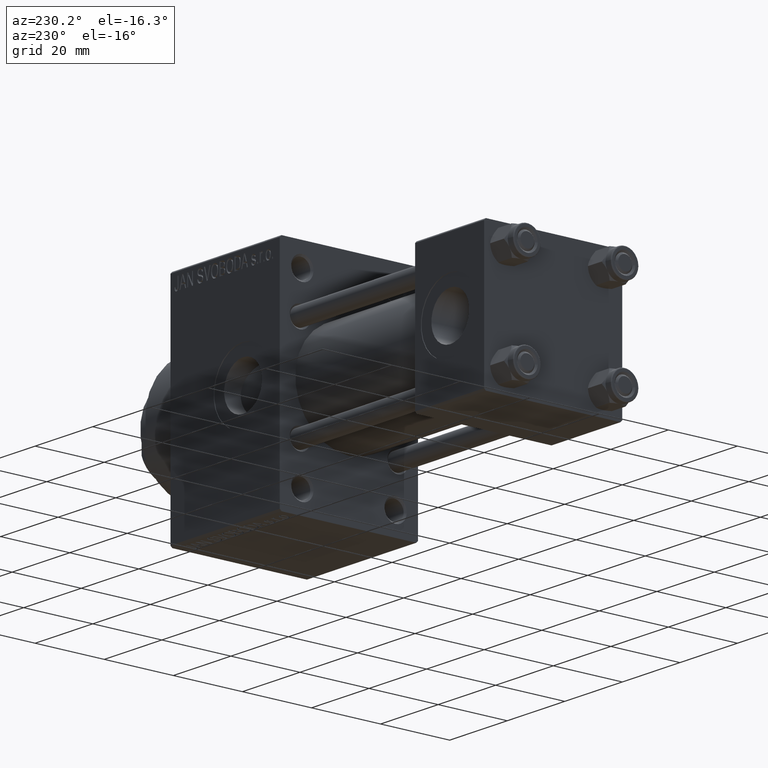
[diagram: clean part render]
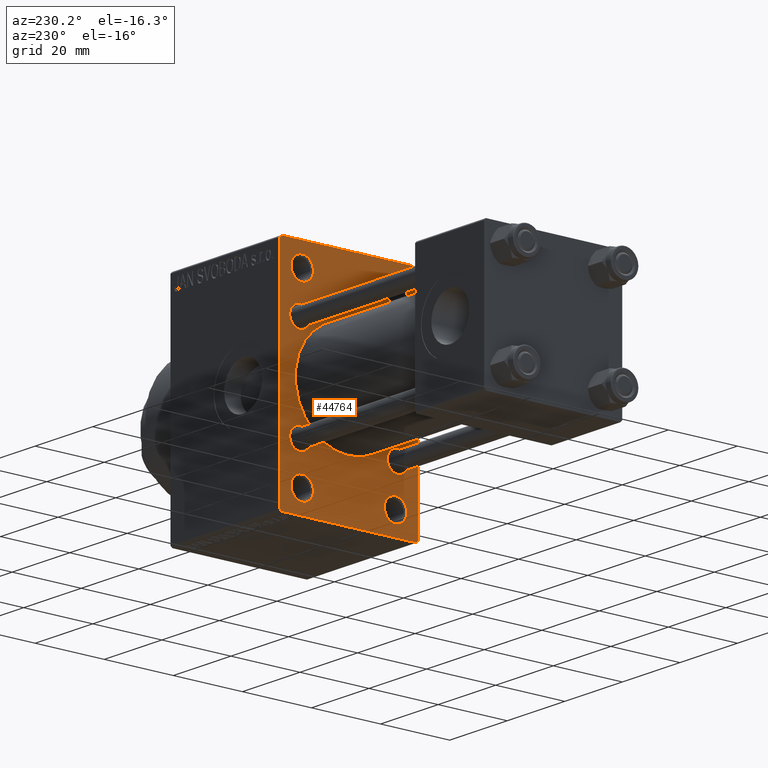
[diagram: same view with one face highlighted and labeled with its STEP entity id]
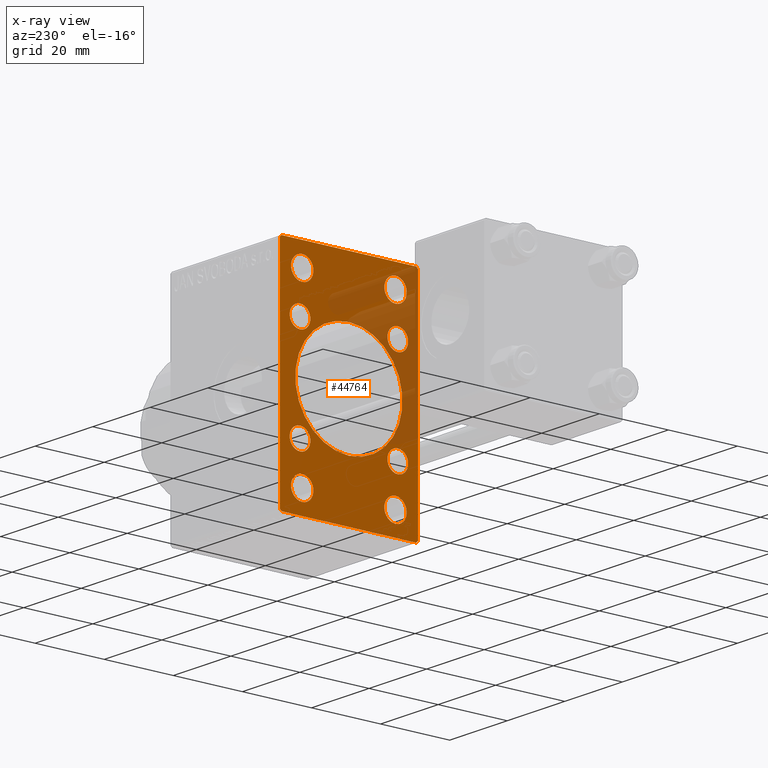
[diagram: x-ray of the same camera — body ghosted, the highlighted face saturated]
A machine part, auxiliary view. The second image highlights one B-rep face of the part: STEP entity #44764.
The next image is the same camera in x-ray: the body ghosted, the highlighted face saturated — about 24% of this face is hidden behind the body in this view.
In plain terms, the highlighted planar face has unit normal (-1, 0, 0).
Its self-contained STEP definition (entity closure, byte-faithful):
#156 = VECTOR ( 'NONE', #44345, 1000.000000000000000 ) ;
#421 = EDGE_CURVE ( 'NONE', #25995, #25108, #32801, .T. ) ;
#692 = CIRCLE ( 'NONE', #35321, 3.250000000000016875 ) ;
#704 = CARTESIAN_POINT ( 'NONE',  ( 71.00000000000001421, 25.74999999999999645, -25.74999999999999645 ) ) ;
#1115 = VERTEX_POINT ( 'NONE', #12211 ) ;
#1223 = ORIENTED_EDGE ( 'NONE', *, *, #1964, .T. ) ;
#1352 = CIRCLE ( 'NONE', #38324, 3.250000000000016875 ) ;
#1600 = DIRECTION ( 'NONE',  ( -1.000000000000000000, 0.000000000000000000, -0.000000000000000000 ) ) ;
#1762 = EDGE_CURVE ( 'NONE', #26528, #18383, #37990, .T. ) ;
#1808 = AXIS2_PLACEMENT_3D ( 'NONE', #23150, #19945, #4702 ) ;
#1849 = VERTEX_POINT ( 'NONE', #4501 ) ;
#1964 = EDGE_CURVE ( 'NONE', #24273, #14211, #19125, .T. ) ;
#2281 = CARTESIAN_POINT ( 'NONE',  ( 71.00000000000001421, 20.00000000000000000, -31.49999999999998579 ) ) ;
#2353 = ORIENTED_EDGE ( 'NONE', *, *, #30897, .T. ) ;
#2374 = DIRECTION ( 'NONE',  ( 1.000000000000000000, 0.000000000000000000, 0.000000000000000000 ) ) ;
#2577 = AXIS2_PLACEMENT_3D ( 'NONE', #8397, #41891, #27104 ) ;
#3320 = DIRECTION ( 'NONE',  ( 1.000000000000000000, 0.000000000000000000, 0.000000000000000000 ) ) ;
#3573 = AXIS2_PLACEMENT_3D ( 'NONE', #47899, #6291, #43951 ) ;
#3635 = EDGE_CURVE ( 'NONE', #33167, #43824, #45037, .T. ) ;
#4073 = FACE_BOUND ( 'NONE', #32811, .T. ) ;
#4501 = CARTESIAN_POINT ( 'NONE',  ( 71.00000000000001421, 13.49999999999999822, 22.24999999999998934 ) ) ;
#4555 = CARTESIAN_POINT ( 'NONE',  ( 71.00000000000001421, 0.000000000000000000, 0.000000000000000000 ) ) ;
#4702 = DIRECTION ( 'NONE',  ( 0.000000000000000000, 0.000000000000000000, 1.000000000000000000 ) ) ;
#5464 = EDGE_CURVE ( 'NONE', #16587, #25995, #20316, .T. ) ;
#5902 = EDGE_LOOP ( 'NONE', ( #30404, #20345 ) ) ;
#6171 = CIRCLE ( 'NONE', #40752, 3.000000000000004441 ) ;
#6291 = DIRECTION ( 'NONE',  ( 1.000000000000000000, 0.000000000000000000, 0.000000000000000000 ) ) ;
#6374 = FACE_BOUND ( 'NONE', #17236, .T. ) ;
#7287 = EDGE_CURVE ( 'NONE', #46669, #39040, #45914, .T. ) ;
#7635 = LINE ( 'NONE', #18455, #14641 ) ;
#7828 = EDGE_LOOP ( 'NONE', ( #44737, #19080 ) ) ;
#7916 = CARTESIAN_POINT ( 'NONE',  ( 71.00000000000001421, -2.602085213965210642E-15, 0.000000000000000000 ) ) ;
#7995 = CIRCLE ( 'NONE', #26863, 3.250000000000016875 ) ;
#8278 = AXIS2_PLACEMENT_3D ( 'NONE', #34376, #11956, #26981 ) ;
#8397 = CARTESIAN_POINT ( 'NONE',  ( 71.00000000000001421, -14.15000000000000036, 14.15000000000000036 ) ) ;
#8470 = EDGE_CURVE ( 'NONE', #15610, #1115, #30999, .T. ) ;
#8577 = EDGE_CURVE ( 'NONE', #39567, #31735, #22392, .T. ) ;
#8730 = FACE_BOUND ( 'NONE', #14766, .T. ) ;
#8760 = DIRECTION ( 'NONE',  ( 0.000000000000000000, 0.7071067811865474617, -0.7071067811865474617 ) ) ;
#9178 = ORIENTED_EDGE ( 'NONE', *, *, #46889, .T. ) ;
#9642 = CARTESIAN_POINT ( 'NONE',  ( 71.00000000000001421, -2.602085213965210642E-15, 0.000000000000000000 ) ) ;
#9948 = DIRECTION ( 'NONE',  ( 0.000000000000000000, 0.000000000000000000, 1.000000000000000000 ) ) ;
#9986 = ORIENTED_EDGE ( 'NONE', *, *, #13464, .T. ) ;
#10245 = ORIENTED_EDGE ( 'NONE', *, *, #41807, .T. ) ;
#10298 = EDGE_CURVE ( 'NONE', #29794, #26303, #27956, .T. ) ;
#10480 = VECTOR ( 'NONE', #8760, 1000.000000000000114 ) ;
#10670 = ORIENTED_EDGE ( 'NONE', *, *, #17440, .T. ) ;
#10693 = CARTESIAN_POINT ( 'NONE',  ( 71.00000000000001421, 13.49999999999999822, -22.24999999999998224 ) ) ;
#10714 = CARTESIAN_POINT ( 'NONE',  ( 71.00000000000001421, -13.50000000000000178, 25.50000000000000355 ) ) ;
#10760 = LINE ( 'NONE', #40806, #37508 ) ;
#10778 = CARTESIAN_POINT ( 'NONE',  ( 71.00000000000001421, 13.49999999999999822, -28.75000000000001421 ) ) ;
#10877 = CARTESIAN_POINT ( 'NONE',  ( 71.00000000000001421, 20.00000000000000000, 31.49999999999998579 ) ) ;
#10984 = DIRECTION ( 'NONE',  ( 0.000000000000000000, 0.000000000000000000, 1.000000000000000000 ) ) ;
#11805 = DIRECTION ( 'NONE',  ( 1.000000000000000000, 0.000000000000000000, 0.000000000000000000 ) ) ;
#11873 = CARTESIAN_POINT ( 'NONE',  ( 71.00000000000001421, 13.49999999999999822, 25.50000000000000355 ) ) ;
#11892 = DIRECTION ( 'NONE',  ( 1.000000000000000000, 0.000000000000000000, 0.000000000000000000 ) ) ;
#11914 = EDGE_CURVE ( 'NONE', #34600, #46558, #7635, .T. ) ;
#11956 = DIRECTION ( 'NONE',  ( 1.000000000000000000, 0.000000000000000000, 0.000000000000000000 ) ) ;
#11998 = EDGE_CURVE ( 'NONE', #34311, #48257, #42971, .T. ) ;
#12075 = CARTESIAN_POINT ( 'NONE',  ( 71.00000000000001421, -14.15000000000000036, 17.15000000000000568 ) ) ;
#12118 = DIRECTION ( 'NONE',  ( 0.000000000000000000, -1.000000000000000000, 0.000000000000000000 ) ) ;
#12174 = DIRECTION ( 'NONE',  ( -0.000000000000000000, 0.000000000000000000, 1.000000000000000000 ) ) ;
#12211 = CARTESIAN_POINT ( 'NONE',  ( 71.00000000000001421, -13.50000000000000533, -22.24999999999997868 ) ) ;
#12574 = CIRCLE ( 'NONE', #45592, 3.000000000000004441 ) ;
#13030 = DIRECTION ( 'NONE',  ( 0.000000000000000000, 0.000000000000000000, 1.000000000000000000 ) ) ;
#13364 = EDGE_LOOP ( 'NONE', ( #18291, #10245, #25518, #9986, #32657, #31869, #22795, #9178 ) ) ;
#13464 = EDGE_CURVE ( 'NONE', #34600, #18782, #10760, .T. ) ;
#13560 = DIRECTION ( 'NONE',  ( 1.000000000000000000, 0.000000000000000000, 0.000000000000000000 ) ) ;
#14211 = VERTEX_POINT ( 'NONE', #22332 ) ;
#14216 = FACE_BOUND ( 'NONE', #48575, .T. ) ;
#14306 = DIRECTION ( 'NONE',  ( 1.000000000000000000, 0.000000000000000000, 0.000000000000000000 ) ) ;
#14641 = VECTOR ( 'NONE', #45296, 1000.000000000000000 ) ;
#14682 = CARTESIAN_POINT ( 'NONE',  ( 71.00000000000001421, 19.49999999999998579, -32.00000000000000000 ) ) ;
#14766 = EDGE_LOOP ( 'NONE', ( #20651, #25490 ) ) ;
#14850 = DIRECTION ( 'NONE',  ( 0.000000000000000000, 0.000000000000000000, 1.000000000000000000 ) ) ;
#15610 = VERTEX_POINT ( 'NONE', #38971 ) ;
#15704 = DIRECTION ( 'NONE',  ( -0.000000000000000000, -0.7071067811865474617, -0.7071067811865474617 ) ) ;
#15943 = CIRCLE ( 'NONE', #16761, 3.250000000000016875 ) ;
#16587 = VERTEX_POINT ( 'NONE', #19951 ) ;
#16761 = AXIS2_PLACEMENT_3D ( 'NONE', #46804, #31771, #32499 ) ;
#16834 = FACE_OUTER_BOUND ( 'NONE', #13364, .T. ) ;
#17236 = EDGE_LOOP ( 'NONE', ( #36326, #27007 ) ) ;
#17440 = EDGE_CURVE ( 'NONE', #29660, #1849, #1352, .T. ) ;
#17488 = AXIS2_PLACEMENT_3D ( 'NONE', #7916, #14306, #37219 ) ;
#17501 = CARTESIAN_POINT ( 'NONE',  ( 71.00000000000001421, -25.75000000000012790, -25.74999999999977263 ) ) ;
#17673 = ORIENTED_EDGE ( 'NONE', *, *, #10298, .T. ) ;
#18291 = ORIENTED_EDGE ( 'NONE', *, *, #1762, .T. ) ;
#18383 = VERTEX_POINT ( 'NONE', #21222 ) ;
#18455 = CARTESIAN_POINT ( 'NONE',  ( 71.00000000000001421, -20.00000000000000000, 31.99999999999999289 ) ) ;
#18718 = EDGE_LOOP ( 'NONE', ( #20579, #43929 ) ) ;
#18782 = VERTEX_POINT ( 'NONE', #18870 ) ;
#18870 = CARTESIAN_POINT ( 'NONE',  ( 71.00000000000001421, -19.49999999999998579, 31.99999999999999289 ) ) ;
#18972 = DIRECTION ( 'NONE',  ( 1.000000000000000000, 0.000000000000000000, 0.000000000000000000 ) ) ;
#19080 = ORIENTED_EDGE ( 'NONE', *, *, #33053, .T. ) ;
#19125 = CIRCLE ( 'NONE', #24639, 15.50000000000000000 ) ;
#19350 = ORIENTED_EDGE ( 'NONE', *, *, #8470, .T. ) ;
#19945 = DIRECTION ( 'NONE',  ( 1.000000000000000000, 0.000000000000000000, 0.000000000000000000 ) ) ;
#19951 = CARTESIAN_POINT ( 'NONE',  ( 71.00000000000001421, 19.49999999999998579, 32.00000000000000000 ) ) ;
#20054 = CARTESIAN_POINT ( 'NONE',  ( 71.00000000000001421, -13.50000000000000533, -25.49999999999999645 ) ) ;
#20316 = LINE ( 'NONE', #35350, #10480 ) ;
#20345 = ORIENTED_EDGE ( 'NONE', *, *, #11998, .T. ) ;
#20579 = ORIENTED_EDGE ( 'NONE', *, *, #46504, .T. ) ;
#20651 = ORIENTED_EDGE ( 'NONE', *, *, #3635, .T. ) ;
#21222 = CARTESIAN_POINT ( 'NONE',  ( 71.00000000000001421, -19.49999999999998579, -32.00000000000000000 ) ) ;
#21761 = DIRECTION ( 'NONE',  ( 0.000000000000000000, 0.000000000000000000, 1.000000000000000000 ) ) ;
#22006 = CARTESIAN_POINT ( 'NONE',  ( 71.00000000000001421, 13.49999999999999822, 25.50000000000000355 ) ) ;
#22332 = CARTESIAN_POINT ( 'NONE',  ( 71.00000000000001421, -2.602085213965210642E-15, 15.50000000000000000 ) ) ;
#22392 = CIRCLE ( 'NONE', #8278, 3.250000000000016875 ) ;
#22795 = ORIENTED_EDGE ( 'NONE', *, *, #421, .T. ) ;
#22912 = CARTESIAN_POINT ( 'NONE',  ( 71.00000000000001421, 14.15000000000000036, 14.15000000000000036 ) ) ;
#22977 = DIRECTION ( 'NONE',  ( 1.000000000000000000, 0.000000000000000000, 0.000000000000000000 ) ) ;
#23150 = CARTESIAN_POINT ( 'NONE',  ( 71.00000000000001421, -14.15000000000000036, -14.15000000000000036 ) ) ;
#23214 = CARTESIAN_POINT ( 'NONE',  ( 71.00000000000001421, -13.50000000000000178, 28.75000000000001776 ) ) ;
#23253 = FACE_BOUND ( 'NONE', #23428, .T. ) ;
#23428 = EDGE_LOOP ( 'NONE', ( #17673, #36605 ) ) ;
#24273 = VERTEX_POINT ( 'NONE', #43278 ) ;
#24409 = CARTESIAN_POINT ( 'NONE',  ( 71.00000000000001421, -20.00000000000000000, 31.49999999999997868 ) ) ;
#24504 = VECTOR ( 'NONE', #47096, 1000.000000000000000 ) ;
#24639 = AXIS2_PLACEMENT_3D ( 'NONE', #9642, #13560, #24643 ) ;
#24643 = DIRECTION ( 'NONE',  ( 0.000000000000000000, 0.000000000000000000, -1.000000000000000000 ) ) ;
#24645 = ORIENTED_EDGE ( 'NONE', *, *, #41416, .T. ) ;
#24671 = AXIS2_PLACEMENT_3D ( 'NONE', #43079, #39627, #13030 ) ;
#24793 = EDGE_CURVE ( 'NONE', #26303, #29794, #12574, .T. ) ;
#25076 = EDGE_CURVE ( 'NONE', #16587, #18782, #39702, .T. ) ;
#25108 = VERTEX_POINT ( 'NONE', #2281 ) ;
#25295 = DIRECTION ( 'NONE',  ( -0.000000000000000000, 0.7071067811865474617, 0.7071067811865474617 ) ) ;
#25490 = ORIENTED_EDGE ( 'NONE', *, *, #35811, .T. ) ;
#25518 = ORIENTED_EDGE ( 'NONE', *, *, #11914, .F. ) ;
#25919 = AXIS2_PLACEMENT_3D ( 'NONE', #22912, #18972, #41399 ) ;
#25995 = VERTEX_POINT ( 'NONE', #10877 ) ;
#26303 = VERTEX_POINT ( 'NONE', #46253 ) ;
#26528 = VERTEX_POINT ( 'NONE', #14682 ) ;
#26863 = AXIS2_PLACEMENT_3D ( 'NONE', #10714, #40764, #40034 ) ;
#26910 = DIRECTION ( 'NONE',  ( 0.000000000000000000, 0.000000000000000000, 1.000000000000000000 ) ) ;
#26981 = DIRECTION ( 'NONE',  ( 0.000000000000000000, 0.000000000000000000, 1.000000000000000000 ) ) ;
#27007 = ORIENTED_EDGE ( 'NONE', *, *, #40485, .T. ) ;
#27104 = DIRECTION ( 'NONE',  ( 0.000000000000000000, 0.000000000000000000, 1.000000000000000000 ) ) ;
#27136 = DIRECTION ( 'NONE',  ( 0.000000000000000000, 0.000000000000000000, 1.000000000000000000 ) ) ;
#27956 = CIRCLE ( 'NONE', #3573, 3.000000000000004441 ) ;
#28453 = CARTESIAN_POINT ( 'NONE',  ( 71.00000000000001421, -14.15000000000000036, 14.15000000000000036 ) ) ;
#28502 = CIRCLE ( 'NONE', #2577, 3.000000000000004441 ) ;
#29245 = CIRCLE ( 'NONE', #30789, 3.250000000000016875 ) ;
#29314 = AXIS2_PLACEMENT_3D ( 'NONE', #30598, #11892, #26910 ) ;
#29660 = VERTEX_POINT ( 'NONE', #47664 ) ;
#29692 = CARTESIAN_POINT ( 'NONE',  ( 71.00000000000001421, -13.50000000000000533, -25.49999999999999645 ) ) ;
#29794 = VERTEX_POINT ( 'NONE', #38037 ) ;
#30404 = ORIENTED_EDGE ( 'NONE', *, *, #47525, .T. ) ;
#30598 = CARTESIAN_POINT ( 'NONE',  ( 71.00000000000001421, 14.15000000000000036, 14.15000000000000036 ) ) ;
#30778 = CARTESIAN_POINT ( 'NONE',  ( 71.00000000000001421, -20.00000000000000000, -31.49999999999997868 ) ) ;
#30789 = AXIS2_PLACEMENT_3D ( 'NONE', #20054, #42716, #9948 ) ;
#30897 = EDGE_CURVE ( 'NONE', #1849, #29660, #692, .T. ) ;
#30952 = VERTEX_POINT ( 'NONE', #43370 ) ;
#30999 = CIRCLE ( 'NONE', #37308, 3.250000000000016875 ) ;
#31735 = VERTEX_POINT ( 'NONE', #41113 ) ;
#31771 = DIRECTION ( 'NONE',  ( 1.000000000000000000, 0.000000000000000000, 0.000000000000000000 ) ) ;
#31869 = ORIENTED_EDGE ( 'NONE', *, *, #5464, .T. ) ;
#32450 = CIRCLE ( 'NONE', #17488, 15.50000000000000000 ) ;
#32499 = DIRECTION ( 'NONE',  ( 0.000000000000000000, 0.000000000000000000, 1.000000000000000000 ) ) ;
#32657 = ORIENTED_EDGE ( 'NONE', *, *, #25076, .F. ) ;
#32801 = LINE ( 'NONE', #35769, #48217 ) ;
#32811 = EDGE_LOOP ( 'NONE', ( #10670, #2353 ) ) ;
#33053 = EDGE_CURVE ( 'NONE', #30952, #42658, #6171, .T. ) ;
#33167 = VERTEX_POINT ( 'NONE', #35616 ) ;
#33800 = CIRCLE ( 'NONE', #25919, 3.000000000000004441 ) ;
#34036 = CIRCLE ( 'NONE', #1808, 3.000000000000004441 ) ;
#34311 = VERTEX_POINT ( 'NONE', #10778 ) ;
#34376 = CARTESIAN_POINT ( 'NONE',  ( 71.00000000000001421, -13.50000000000000178, 25.50000000000000355 ) ) ;
#34432 = LINE ( 'NONE', #704, #39520 ) ;
#34460 = DIRECTION ( 'NONE',  ( 0.000000000000000000, 0.000000000000000000, 1.000000000000000000 ) ) ;
#34600 = VERTEX_POINT ( 'NONE', #24409 ) ;
#35321 = AXIS2_PLACEMENT_3D ( 'NONE', #11873, #38708, #27136 ) ;
#35325 = PLANE ( 'NONE',  #41950 ) ;
#35350 = CARTESIAN_POINT ( 'NONE',  ( 71.00000000000001421, 25.74999999999999645, 25.74999999999999645 ) ) ;
#35559 = FACE_BOUND ( 'NONE', #42346, .T. ) ;
#35616 = CARTESIAN_POINT ( 'NONE',  ( 71.00000000000001421, 14.15000000000000036, 17.15000000000000568 ) ) ;
#35769 = CARTESIAN_POINT ( 'NONE',  ( 71.00000000000001421, 20.00000000000000000, 32.00000000000000000 ) ) ;
#35811 = EDGE_CURVE ( 'NONE', #43824, #33167, #33800, .T. ) ;
#36326 = ORIENTED_EDGE ( 'NONE', *, *, #8577, .T. ) ;
#36605 = ORIENTED_EDGE ( 'NONE', *, *, #24793, .T. ) ;
#37219 = DIRECTION ( 'NONE',  ( 0.000000000000000000, 0.000000000000000000, -1.000000000000000000 ) ) ;
#37308 = AXIS2_PLACEMENT_3D ( 'NONE', #29692, #44725, #10984 ) ;
#37508 = VECTOR ( 'NONE', #25295, 1000.000000000000114 ) ;
#37742 = CARTESIAN_POINT ( 'NONE',  ( 71.00000000000001421, 20.00000000000000000, -32.00000000000000000 ) ) ;
#37990 = LINE ( 'NONE', #37742, #40374 ) ;
#38037 = CARTESIAN_POINT ( 'NONE',  ( 71.00000000000001421, 14.15000000000000036, -11.14999999999999680 ) ) ;
#38286 = FACE_BOUND ( 'NONE', #7828, .T. ) ;
#38324 = AXIS2_PLACEMENT_3D ( 'NONE', #22006, #3320, #21761 ) ;
#38708 = DIRECTION ( 'NONE',  ( 1.000000000000000000, 0.000000000000000000, 0.000000000000000000 ) ) ;
#38971 = CARTESIAN_POINT ( 'NONE',  ( 71.00000000000001421, -13.50000000000000533, -28.75000000000001066 ) ) ;
#39040 = VERTEX_POINT ( 'NONE', #39394 ) ;
#39394 = CARTESIAN_POINT ( 'NONE',  ( 71.00000000000001421, -14.15000000000000036, -11.14999999999999680 ) ) ;
#39520 = VECTOR ( 'NONE', #15704, 1000.000000000000114 ) ;
#39567 = VERTEX_POINT ( 'NONE', #23214 ) ;
#39627 = DIRECTION ( 'NONE',  ( 1.000000000000000000, 0.000000000000000000, 0.000000000000000000 ) ) ;
#39702 = LINE ( 'NONE', #47585, #24504 ) ;
#39704 = DIRECTION ( 'NONE',  ( 0.000000000000000000, 0.000000000000000000, -1.000000000000000000 ) ) ;
#39920 = LINE ( 'NONE', #17501, #156 ) ;
#40029 = DIRECTION ( 'NONE',  ( 0.000000000000000000, 0.000000000000000000, 1.000000000000000000 ) ) ;
#40034 = DIRECTION ( 'NONE',  ( 0.000000000000000000, 0.000000000000000000, 1.000000000000000000 ) ) ;
#40374 = VECTOR ( 'NONE', #12118, 1000.000000000000000 ) ;
#40485 = EDGE_CURVE ( 'NONE', #31735, #39567, #7995, .T. ) ;
#40752 = AXIS2_PLACEMENT_3D ( 'NONE', #28453, #2374, #40029 ) ;
#40764 = DIRECTION ( 'NONE',  ( 1.000000000000000000, 0.000000000000000000, 0.000000000000000000 ) ) ;
#40806 = CARTESIAN_POINT ( 'NONE',  ( 71.00000000000001421, -25.74999999999998934, 25.74999999999998934 ) ) ;
#40850 = CARTESIAN_POINT ( 'NONE',  ( 71.00000000000001421, -14.15000000000000036, -17.15000000000000568 ) ) ;
#41113 = CARTESIAN_POINT ( 'NONE',  ( 71.00000000000001421, -13.50000000000000178, 22.24999999999998579 ) ) ;
#41382 = AXIS2_PLACEMENT_3D ( 'NONE', #42827, #11805, #34460 ) ;
#41399 = DIRECTION ( 'NONE',  ( 0.000000000000000000, 0.000000000000000000, 1.000000000000000000 ) ) ;
#41416 = EDGE_CURVE ( 'NONE', #1115, #15610, #29245, .T. ) ;
#41495 = FACE_BOUND ( 'NONE', #5902, .T. ) ;
#41807 = EDGE_CURVE ( 'NONE', #18383, #46558, #39920, .T. ) ;
#41891 = DIRECTION ( 'NONE',  ( 1.000000000000000000, 0.000000000000000000, 0.000000000000000000 ) ) ;
#41950 = AXIS2_PLACEMENT_3D ( 'NONE', #4555, #1600, #12174 ) ;
#42007 = ORIENTED_EDGE ( 'NONE', *, *, #47220, .T. ) ;
#42346 = EDGE_LOOP ( 'NONE', ( #42007, #1223 ) ) ;
#42658 = VERTEX_POINT ( 'NONE', #12075 ) ;
#42699 = CARTESIAN_POINT ( 'NONE',  ( 71.00000000000001421, 14.15000000000000036, 11.14999999999999680 ) ) ;
#42716 = DIRECTION ( 'NONE',  ( 1.000000000000000000, 0.000000000000000000, 0.000000000000000000 ) ) ;
#42827 = CARTESIAN_POINT ( 'NONE',  ( 71.00000000000001421, 13.49999999999999822, -25.50000000000000000 ) ) ;
#42971 = CIRCLE ( 'NONE', #41382, 3.250000000000016875 ) ;
#43079 = CARTESIAN_POINT ( 'NONE',  ( 71.00000000000001421, -14.15000000000000036, -14.15000000000000036 ) ) ;
#43278 = CARTESIAN_POINT ( 'NONE',  ( 71.00000000000001421, -7.038826752868131828E-16, -15.50000000000000000 ) ) ;
#43370 = CARTESIAN_POINT ( 'NONE',  ( 71.00000000000001421, -14.15000000000000036, 11.14999999999999503 ) ) ;
#43824 = VERTEX_POINT ( 'NONE', #42699 ) ;
#43929 = ORIENTED_EDGE ( 'NONE', *, *, #7287, .T. ) ;
#43951 = DIRECTION ( 'NONE',  ( 0.000000000000000000, 0.000000000000000000, 1.000000000000000000 ) ) ;
#44345 = DIRECTION ( 'NONE',  ( 0.000000000000000000, -0.7071067811865426878, 0.7071067811865524577 ) ) ;
#44725 = DIRECTION ( 'NONE',  ( 1.000000000000000000, 0.000000000000000000, 0.000000000000000000 ) ) ;
#44737 = ORIENTED_EDGE ( 'NONE', *, *, #47314, .T. ) ;
#44764 = ADVANCED_FACE ( 'NONE', ( #6374, #14216, #41495, #4073, #38286, #8730, #23253, #46146, #35559, #16834 ), #35325, .T. ) ;
#45037 = CIRCLE ( 'NONE', #29314, 3.000000000000004441 ) ;
#45296 = DIRECTION ( 'NONE',  ( 0.000000000000000000, 0.000000000000000000, -1.000000000000000000 ) ) ;
#45592 = AXIS2_PLACEMENT_3D ( 'NONE', #48609, #22977, #14850 ) ;
#45914 = CIRCLE ( 'NONE', #24671, 3.000000000000004441 ) ;
#46146 = FACE_BOUND ( 'NONE', #18718, .T. ) ;
#46253 = CARTESIAN_POINT ( 'NONE',  ( 71.00000000000001421, 14.15000000000000036, -17.15000000000000568 ) ) ;
#46504 = EDGE_CURVE ( 'NONE', #39040, #46669, #34036, .T. ) ;
#46558 = VERTEX_POINT ( 'NONE', #30778 ) ;
#46669 = VERTEX_POINT ( 'NONE', #40850 ) ;
#46804 = CARTESIAN_POINT ( 'NONE',  ( 71.00000000000001421, 13.49999999999999822, -25.50000000000000000 ) ) ;
#46889 = EDGE_CURVE ( 'NONE', #25108, #26528, #34432, .T. ) ;
#47096 = DIRECTION ( 'NONE',  ( 0.000000000000000000, -1.000000000000000000, -1.734723475976807094E-16 ) ) ;
#47220 = EDGE_CURVE ( 'NONE', #14211, #24273, #32450, .T. ) ;
#47314 = EDGE_CURVE ( 'NONE', #42658, #30952, #28502, .T. ) ;
#47525 = EDGE_CURVE ( 'NONE', #48257, #34311, #15943, .T. ) ;
#47585 = CARTESIAN_POINT ( 'NONE',  ( 71.00000000000001421, 20.00000000000000000, 32.00000000000000000 ) ) ;
#47664 = CARTESIAN_POINT ( 'NONE',  ( 71.00000000000001421, 13.49999999999999822, 28.75000000000002132 ) ) ;
#47899 = CARTESIAN_POINT ( 'NONE',  ( 71.00000000000001421, 14.15000000000000036, -14.15000000000000036 ) ) ;
#48217 = VECTOR ( 'NONE', #39704, 1000.000000000000000 ) ;
#48257 = VERTEX_POINT ( 'NONE', #10693 ) ;
#48575 = EDGE_LOOP ( 'NONE', ( #24645, #19350 ) ) ;
#48609 = CARTESIAN_POINT ( 'NONE',  ( 71.00000000000001421, 14.15000000000000036, -14.15000000000000036 ) ) ;